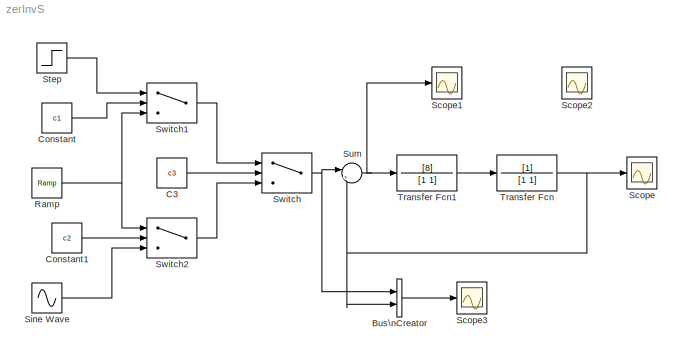
MODEL zerInvS
KIND model
BLOCK [BusCreator] Bus\nCreator
  DisplayOption = bar
  Inputs = 2
  Ports = [2, 1]
  SID = 18
BLOCK [Constant] C3
  SID = 12
  Value = c3
BLOCK [Constant] Constant
  SID = 7
  Value = c1
BLOCK [Constant] Constant1
  SID = 11
  Value = c2
BLOCK [Reference] Ramp  REF=simulink/Sources/Ramp
  Ports = [0, 1]
  SID = 2
  SourceBlock = simulink/Sources/Ramp
  SourceType = Ramp
  VectorParams1D = on
  X0 = 0
  slope = 1
  start = 0
BLOCK [Scope] Scope
  DataFormat = StructureWithTime
  Floating = off
  NumInputPorts = 1
  Ports = [1]
  SID = 8
  SampleTime = 0
  ShowLegends = off
BLOCK [Scope] Scope1
  DataFormat = StructureWithTime
  Floating = off
  NumInputPorts = 1
  Ports = [1]
  SID = 15
  SampleTime = 0
  SaveName = ScopeData1
  ShowLegends = off
BLOCK [Scope] Scope2
  DataFormat = StructureWithTime
  Floating = off
  NumInputPorts = 1
  Ports = [1]
  SID = 16
  SampleTime = 0
  SaveName = ScopeData2
  ShowLegends = off
BLOCK [Scope] Scope3
  DataFormat = StructureWithTime
  Floating = off
  NumInputPorts = 1
  Ports = [1]
  SID = 17
  SampleTime = 0
  SaveName = ScopeData3
  ShowLegends = off
BLOCK [Sin] Sine Wave
  Frequency = 3
  Ports = [0, 1]
  SID = 4
  SampleTime = 0
BLOCK [Step] Step
  SID = 3
  SampleTime = 0
BLOCK [Sum] Sum
  IconShape = round
  InputSameDT = off
  Inputs = |+-
  OutDataTypeStr = Inherit: Inherit via internal rule
  Ports = [2, 1]
  SID = 13
  SaturateOnIntegerOverflow = off
BLOCK [Switch] Switch
  InputSameDT = off
  SID = 5
  SaturateOnIntegerOverflow = off
  Threshold = 2
BLOCK [Switch] Switch1
  InputSameDT = off
  SID = 9
  SaturateOnIntegerOverflow = off
  Threshold = 2
BLOCK [Switch] Switch2
  InputSameDT = off
  SID = 10
  SaturateOnIntegerOverflow = off
  Threshold = 2
BLOCK [TransferFcn] Transfer Fcn
  Denominator = [1 1]
  SID = 1
BLOCK [TransferFcn] Transfer Fcn1
  Denominator = [1 1]
  Numerator = [8]
  SID = 14
LINE Bus\nCreator:1 -> Scope3:1
LINE C3:1 -> Switch:2
LINE Constant1:1 -> Switch2:2
LINE Constant:1 -> Switch1:2
NET Ramp:1 -> Switch1:3, Switch2:1
LINE Sine Wave:1 -> Switch2:3
LINE Step:1 -> Switch1:1
NET Sum:1 -> Scope1:1, Transfer Fcn1:1
LINE Switch1:1 -> Switch:1
LINE Switch2:1 -> Switch:3
NET Switch:1 -> Bus\nCreator:1, Sum:1
LINE Transfer Fcn1:1 -> Transfer Fcn:1
NET Transfer Fcn:1 -> Bus\nCreator:2, Scope:1, Sum:2
note: NET lines group one-source signal fan-out (src -> all destinations, sorted); 1:1 wires keep LINE
